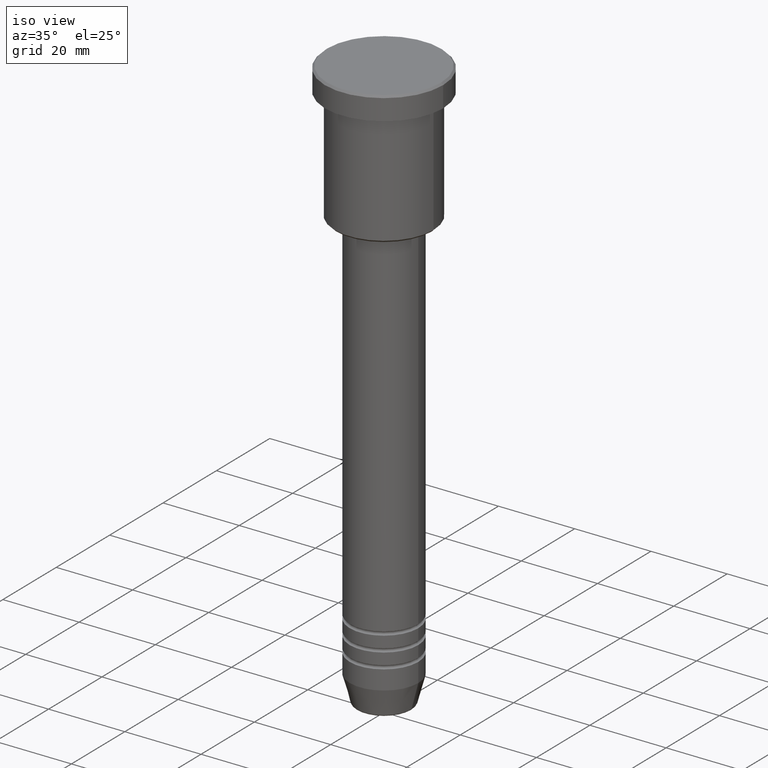
[diagram: clean part render]
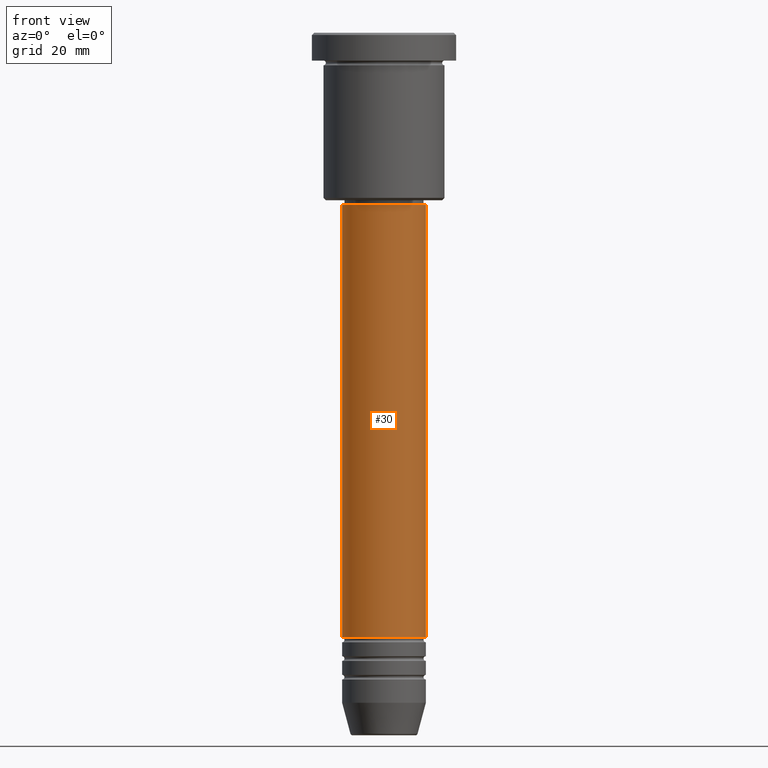
[diagram: tour spotlight — one face highlighted and labeled with its STEP entity id]
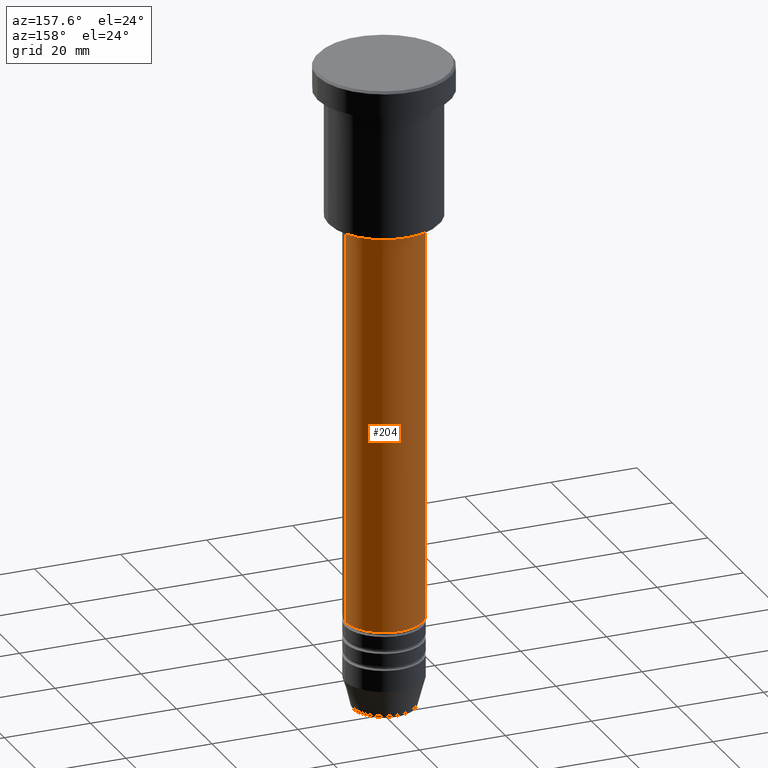
[diagram: tour spotlight — one face highlighted and labeled with its STEP entity id]
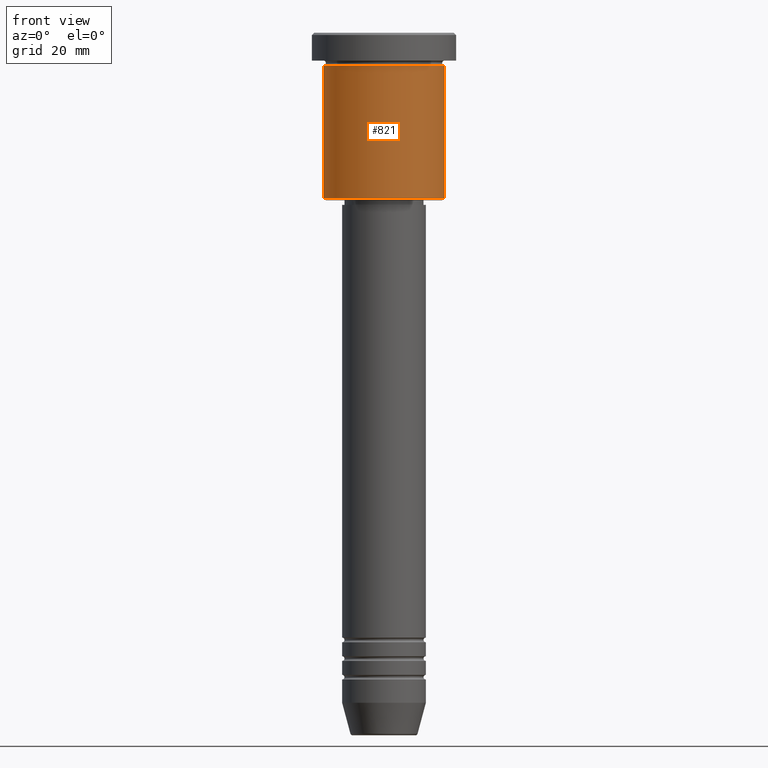
[diagram: tour spotlight — one face highlighted and labeled with its STEP entity id]
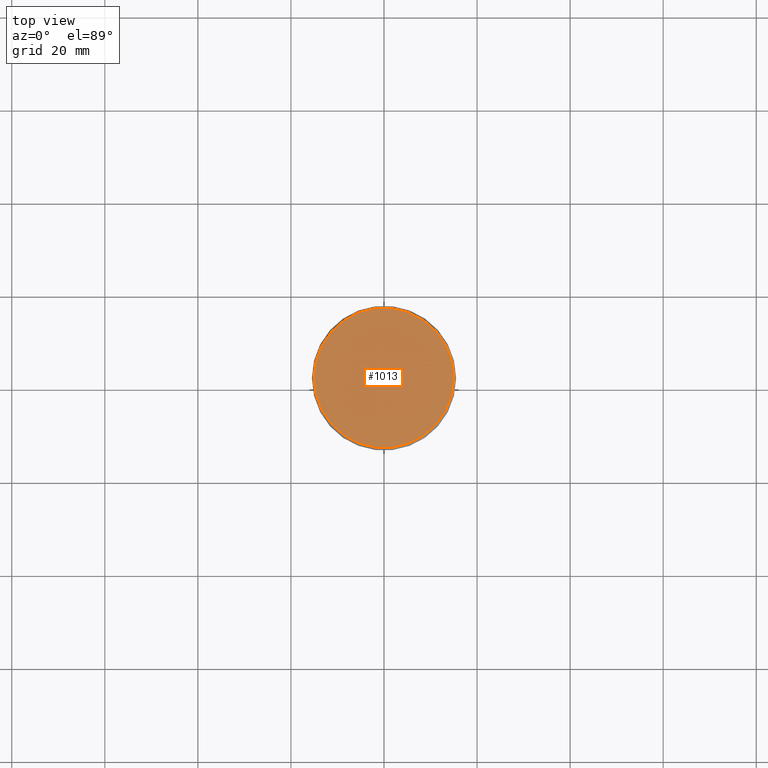
[diagram: tour spotlight — one face highlighted and labeled with its STEP entity id]
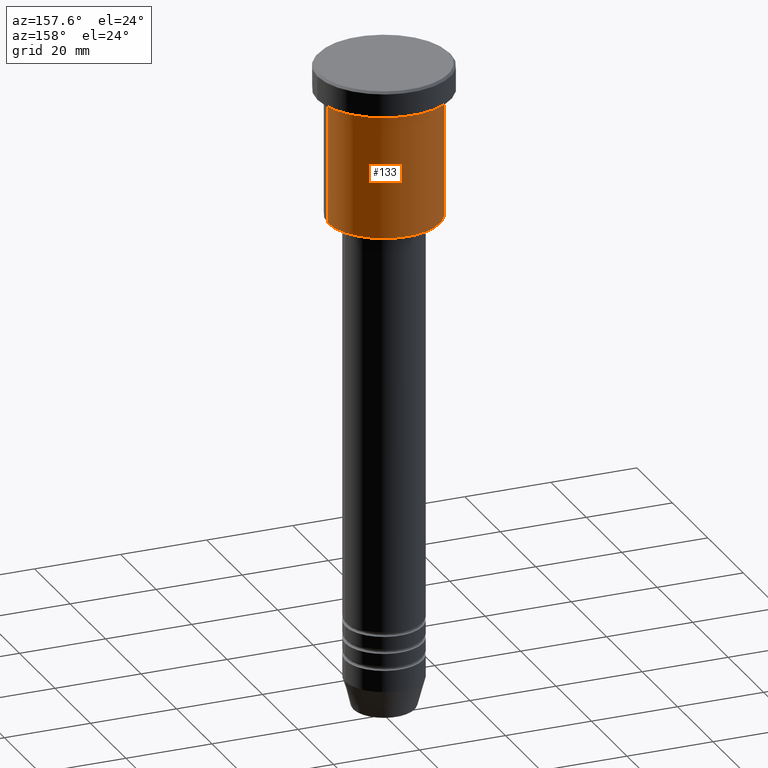
[diagram: tour spotlight — one face highlighted and labeled with its STEP entity id]
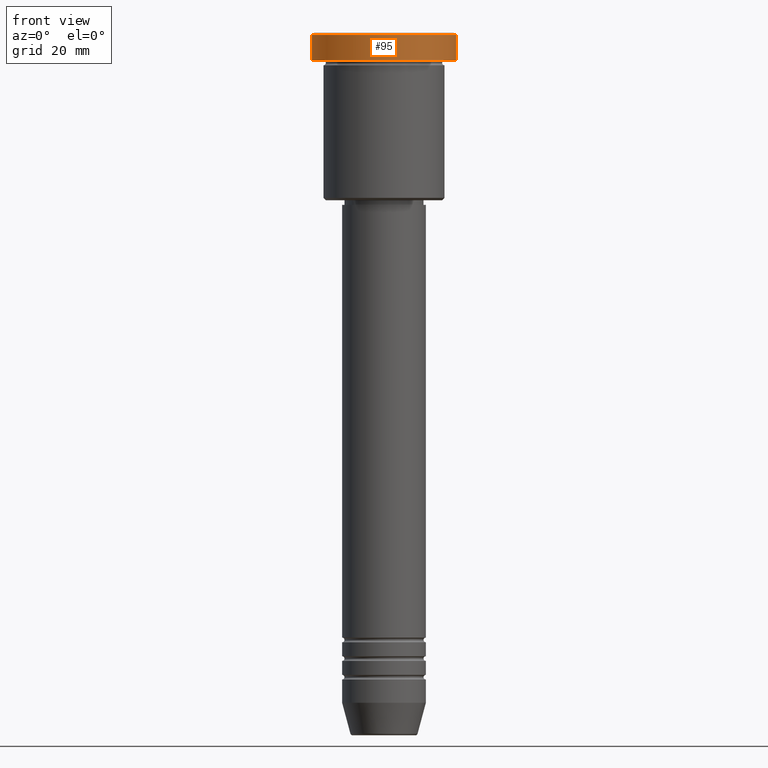
[diagram: tour spotlight — one face highlighted and labeled with its STEP entity id]
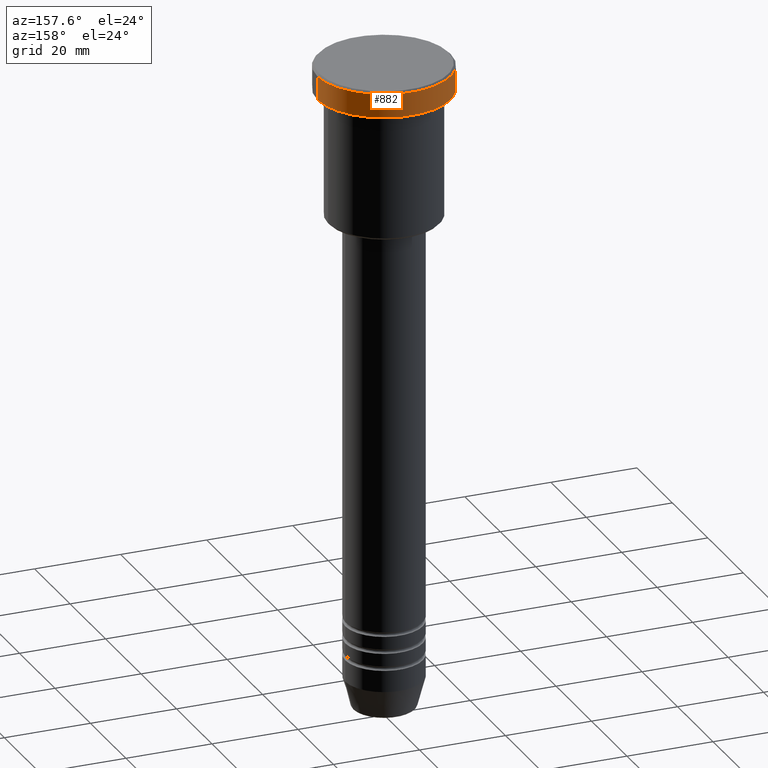
[diagram: tour spotlight — one face highlighted and labeled with its STEP entity id]
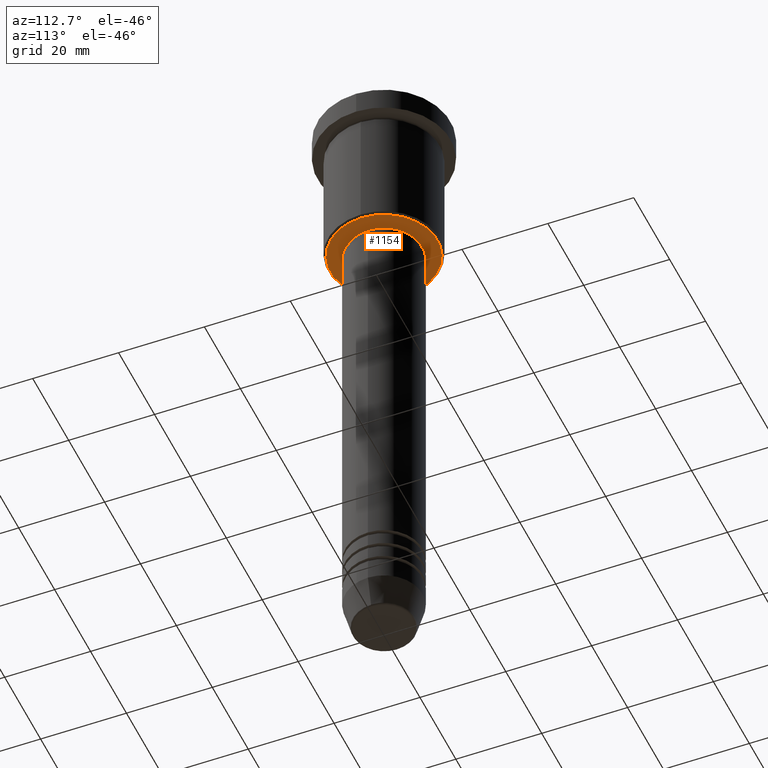
[diagram: tour spotlight — one face highlighted and labeled with its STEP entity id]
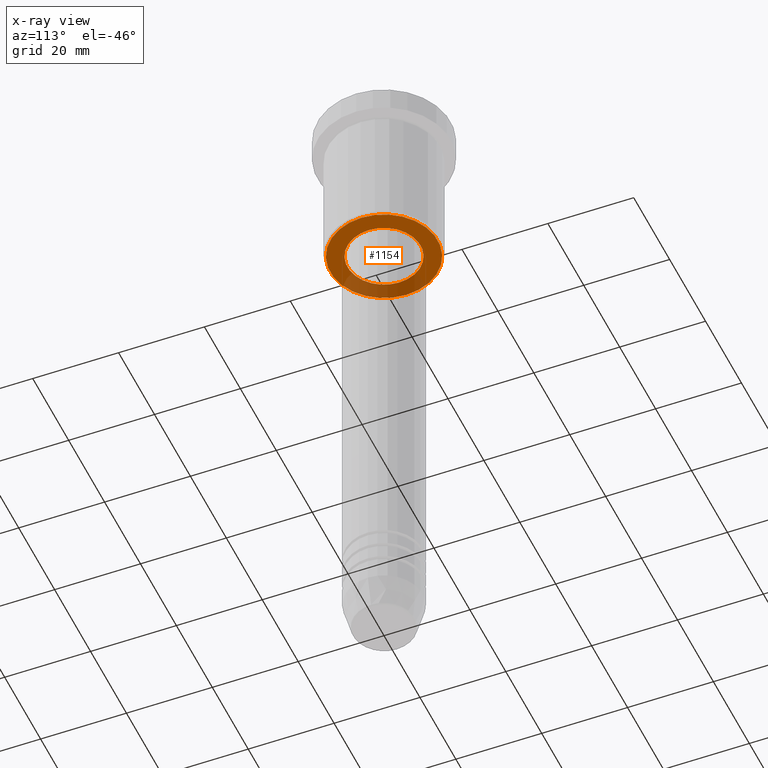
[diagram: x-ray of the same camera — body ghosted, this tour face saturated]
A machine part: a face-by-face anatomy tour. The part has 43 B-rep faces; the first image is the clean iso view, then the 8 largest visible faces are spotlighted one at a time (largest first), each with its STEP entity span.

Face 1 — front view, entity #30. In plain terms, the highlighted cylindrical surface (partial cylindrical patch) has radius 9 mm, axis along (-0, -0, 1).
Definition (entity closure, byte-faithful):
#1 = AXIS2_PLACEMENT_3D ( 'NONE', #104, #1054, #1133 ) ;
#17 = ORIENTED_EDGE ( 'NONE', *, *, #617, .F. ) ;
#25 = EDGE_CURVE ( 'NONE', #606, #379, #1037, .T. ) ;
#30 = ADVANCED_FACE ( 'NONE', ( #1065 ), #402, .T. ) ;
#31 = DIRECTION ( 'NONE',  ( -0.000000000000000000, -0.000000000000000000, 1.000000000000000000 ) ) ;
#37 = EDGE_CURVE ( 'NONE', #379, #1028, #695, .T. ) ;
#104 = CARTESIAN_POINT ( 'NONE',  ( 0.000000000000000000, 0.000000000000000000, -129.9999999999998863 ) ) ;
#129 = VERTEX_POINT ( 'NONE', #744 ) ;
#131 = CARTESIAN_POINT ( 'NONE',  ( 9.000000000000000000, 0.000000000000000000, 0.000000000000000000 ) ) ;
#176 = VECTOR ( 'NONE', #513, 1000.000000000000000 ) ;
#251 = AXIS2_PLACEMENT_3D ( 'NONE', #957, #593, #797 ) ;
#287 = ORIENTED_EDGE ( 'NONE', *, *, #25, .T. ) ;
#299 = EDGE_LOOP ( 'NONE', ( #17, #287, #1050, #461 ) ) ;
#379 = VERTEX_POINT ( 'NONE', #997 ) ;
#402 = CYLINDRICAL_SURFACE ( 'NONE', #641, 9.000000000000000000 ) ;
#461 = ORIENTED_EDGE ( 'NONE', *, *, #514, .F. ) ;
#513 = DIRECTION ( 'NONE',  ( -0.000000000000000000, -0.000000000000000000, 1.000000000000000000 ) ) ;
#514 = EDGE_CURVE ( 'NONE', #129, #1028, #770, .T. ) ;
#584 = CARTESIAN_POINT ( 'NONE',  ( -9.000000000000000000, 1.102182119232617714E-15, 0.000000000000000000 ) ) ;
#593 = DIRECTION ( 'NONE',  ( -0.000000000000000000, -0.000000000000000000, 1.000000000000000000 ) ) ;
#606 = VERTEX_POINT ( 'NONE', #1032 ) ;
#617 = EDGE_CURVE ( 'NONE', #606, #129, #1139, .T. ) ;
#641 = AXIS2_PLACEMENT_3D ( 'NONE', #1138, #766, #956 ) ;
#695 = LINE ( 'NONE', #131, #176 ) ;
#744 = CARTESIAN_POINT ( 'NONE',  ( -8.999999999999998224, 1.102182119232617714E-15, -37.00000000000000000 ) ) ;
#766 = DIRECTION ( 'NONE',  ( -0.000000000000000000, -0.000000000000000000, 1.000000000000000000 ) ) ;
#770 = CIRCLE ( 'NONE', #251, 8.999999999999998224 ) ;
#797 = DIRECTION ( 'NONE',  ( 1.000000000000000000, 0.000000000000000000, 0.000000000000000000 ) ) ;
#956 = DIRECTION ( 'NONE',  ( 1.000000000000000000, 0.000000000000000000, 0.000000000000000000 ) ) ;
#957 = CARTESIAN_POINT ( 'NONE',  ( 0.000000000000000000, 0.000000000000000000, -37.00000000000000000 ) ) ;
#997 = CARTESIAN_POINT ( 'NONE',  ( 9.000000000000001776, 0.000000000000000000, -129.9999999999998863 ) ) ;
#1028 = VERTEX_POINT ( 'NONE', #1053 ) ;
#1032 = CARTESIAN_POINT ( 'NONE',  ( -9.000000000000001776, 1.102182119232617911E-15, -129.9999999999998863 ) ) ;
#1037 = CIRCLE ( 'NONE', #1, 9.000000000000001776 ) ;
#1050 = ORIENTED_EDGE ( 'NONE', *, *, #37, .T. ) ;
#1053 = CARTESIAN_POINT ( 'NONE',  ( 8.999999999999998224, 0.000000000000000000, -37.00000000000000000 ) ) ;
#1054 = DIRECTION ( 'NONE',  ( -0.000000000000000000, -0.000000000000000000, 1.000000000000000000 ) ) ;
#1065 = FACE_OUTER_BOUND ( 'NONE', #299, .T. ) ;
#1133 = DIRECTION ( 'NONE',  ( 1.000000000000000000, 0.000000000000000000, 0.000000000000000000 ) ) ;
#1138 = CARTESIAN_POINT ( 'NONE',  ( 0.000000000000000000, 0.000000000000000000, 0.000000000000000000 ) ) ;
#1139 = LINE ( 'NONE', #584, #1168 ) ;
#1168 = VECTOR ( 'NONE', #31, 1000.000000000000000 ) ;

Face 2 — auxiliary view, entity #204. In plain terms, the highlighted cylindrical surface (partial cylindrical patch) has radius 9 mm, axis along (-0, -0, 1).
Definition (entity closure, byte-faithful):
#23 = AXIS2_PLACEMENT_3D ( 'NONE', #1049, #1127, #307 ) ;
#31 = DIRECTION ( 'NONE',  ( -0.000000000000000000, -0.000000000000000000, 1.000000000000000000 ) ) ;
#37 = EDGE_CURVE ( 'NONE', #379, #1028, #695, .T. ) ;
#83 = CIRCLE ( 'NONE', #715, 9.000000000000001776 ) ;
#129 = VERTEX_POINT ( 'NONE', #744 ) ;
#131 = CARTESIAN_POINT ( 'NONE',  ( 9.000000000000000000, 0.000000000000000000, 0.000000000000000000 ) ) ;
#163 = ORIENTED_EDGE ( 'NONE', *, *, #37, .F. ) ;
#171 = EDGE_LOOP ( 'NONE', ( #991, #867, #912, #163 ) ) ;
#176 = VECTOR ( 'NONE', #513, 1000.000000000000000 ) ;
#204 = ADVANCED_FACE ( 'NONE', ( #621 ), #793, .T. ) ;
#256 = DIRECTION ( 'NONE',  ( -0.000000000000000000, -0.000000000000000000, 1.000000000000000000 ) ) ;
#307 = DIRECTION ( 'NONE',  ( 1.000000000000000000, 0.000000000000000000, 0.000000000000000000 ) ) ;
#348 = AXIS2_PLACEMENT_3D ( 'NONE', #902, #632, #708 ) ;
#379 = VERTEX_POINT ( 'NONE', #997 ) ;
#513 = DIRECTION ( 'NONE',  ( -0.000000000000000000, -0.000000000000000000, 1.000000000000000000 ) ) ;
#550 = DIRECTION ( 'NONE',  ( 1.000000000000000000, 0.000000000000000000, 0.000000000000000000 ) ) ;
#584 = CARTESIAN_POINT ( 'NONE',  ( -9.000000000000000000, 1.102182119232617714E-15, 0.000000000000000000 ) ) ;
#606 = VERTEX_POINT ( 'NONE', #1032 ) ;
#617 = EDGE_CURVE ( 'NONE', #606, #129, #1139, .T. ) ;
#621 = FACE_OUTER_BOUND ( 'NONE', #171, .T. ) ;
#629 = EDGE_CURVE ( 'NONE', #1028, #129, #1020, .T. ) ;
#632 = DIRECTION ( 'NONE',  ( -0.000000000000000000, -0.000000000000000000, 1.000000000000000000 ) ) ;
#695 = LINE ( 'NONE', #131, #176 ) ;
#708 = DIRECTION ( 'NONE',  ( 1.000000000000000000, 0.000000000000000000, 0.000000000000000000 ) ) ;
#715 = AXIS2_PLACEMENT_3D ( 'NONE', #720, #256, #550 ) ;
#720 = CARTESIAN_POINT ( 'NONE',  ( 0.000000000000000000, 0.000000000000000000, -129.9999999999998863 ) ) ;
#744 = CARTESIAN_POINT ( 'NONE',  ( -8.999999999999998224, 1.102182119232617714E-15, -37.00000000000000000 ) ) ;
#793 = CYLINDRICAL_SURFACE ( 'NONE', #348, 9.000000000000000000 ) ;
#867 = ORIENTED_EDGE ( 'NONE', *, *, #617, .T. ) ;
#902 = CARTESIAN_POINT ( 'NONE',  ( 0.000000000000000000, 0.000000000000000000, 0.000000000000000000 ) ) ;
#912 = ORIENTED_EDGE ( 'NONE', *, *, #629, .F. ) ;
#991 = ORIENTED_EDGE ( 'NONE', *, *, #1106, .T. ) ;
#997 = CARTESIAN_POINT ( 'NONE',  ( 9.000000000000001776, 0.000000000000000000, -129.9999999999998863 ) ) ;
#1020 = CIRCLE ( 'NONE', #23, 8.999999999999998224 ) ;
#1028 = VERTEX_POINT ( 'NONE', #1053 ) ;
#1032 = CARTESIAN_POINT ( 'NONE',  ( -9.000000000000001776, 1.102182119232617911E-15, -129.9999999999998863 ) ) ;
#1049 = CARTESIAN_POINT ( 'NONE',  ( 0.000000000000000000, 0.000000000000000000, -37.00000000000000000 ) ) ;
#1053 = CARTESIAN_POINT ( 'NONE',  ( 8.999999999999998224, 0.000000000000000000, -37.00000000000000000 ) ) ;
#1106 = EDGE_CURVE ( 'NONE', #379, #606, #83, .T. ) ;
#1127 = DIRECTION ( 'NONE',  ( -0.000000000000000000, -0.000000000000000000, 1.000000000000000000 ) ) ;
#1139 = LINE ( 'NONE', #584, #1168 ) ;
#1168 = VECTOR ( 'NONE', #31, 1000.000000000000000 ) ;

Face 3 — front view, entity #821. In plain terms, the highlighted cylindrical surface (partial cylindrical patch) has radius 13 mm, axis along (-0, -0, 1).
Definition (entity closure, byte-faithful):
#71 = DIRECTION ( 'NONE',  ( -0.000000000000000000, -0.000000000000000000, 1.000000000000000000 ) ) ;
#202 = CARTESIAN_POINT ( 'NONE',  ( 0.000000000000000000, 0.000000000000000000, 0.000000000000000000 ) ) ;
#206 = ORIENTED_EDGE ( 'NONE', *, *, #459, .F. ) ;
#239 = DIRECTION ( 'NONE',  ( 1.000000000000000000, 0.000000000000000000, 0.000000000000000000 ) ) ;
#246 = CARTESIAN_POINT ( 'NONE',  ( 13.00000000000000178, 0.000000000000000000, 0.000000000000000000 ) ) ;
#266 = CARTESIAN_POINT ( 'NONE',  ( -13.00000000000000178, 1.592040838891559293E-15, -35.50000000000001421 ) ) ;
#272 = DIRECTION ( 'NONE',  ( -0.000000000000000000, -0.000000000000000000, 1.000000000000000000 ) ) ;
#275 = CIRCLE ( 'NONE', #1170, 13.00000000000000178 ) ;
#290 = CARTESIAN_POINT ( 'NONE',  ( 0.000000000000000000, 0.000000000000000000, -35.50000000000001421 ) ) ;
#291 = VECTOR ( 'NONE', #71, 1000.000000000000000 ) ;
#327 = EDGE_LOOP ( 'NONE', ( #206, #692, #600, #953 ) ) ;
#333 = EDGE_CURVE ( 'NONE', #417, #877, #339, .T. ) ;
#339 = LINE ( 'NONE', #246, #291 ) ;
#361 = EDGE_CURVE ( 'NONE', #1144, #417, #696, .T. ) ;
#391 = DIRECTION ( 'NONE',  ( 1.000000000000000000, 0.000000000000000000, 0.000000000000000000 ) ) ;
#417 = VERTEX_POINT ( 'NONE', #1110 ) ;
#459 = EDGE_CURVE ( 'NONE', #1144, #1030, #549, .T. ) ;
#477 = DIRECTION ( 'NONE',  ( -0.000000000000000000, -0.000000000000000000, 1.000000000000000000 ) ) ;
#544 = VECTOR ( 'NONE', #272, 1000.000000000000000 ) ;
#549 = LINE ( 'NONE', #909, #544 ) ;
#562 = AXIS2_PLACEMENT_3D ( 'NONE', #290, #477, #664 ) ;
#591 = CYLINDRICAL_SURFACE ( 'NONE', #886, 13.00000000000000178 ) ;
#600 = ORIENTED_EDGE ( 'NONE', *, *, #333, .T. ) ;
#601 = CARTESIAN_POINT ( 'NONE',  ( -13.00000000000000178, 1.592040838891559293E-15, -6.999999999999995559 ) ) ;
#664 = DIRECTION ( 'NONE',  ( -1.000000000000000000, 0.000000000000000000, 0.000000000000000000 ) ) ;
#692 = ORIENTED_EDGE ( 'NONE', *, *, #361, .T. ) ;
#696 = CIRCLE ( 'NONE', #562, 13.00000000000000178 ) ;
#757 = DIRECTION ( 'NONE',  ( -0.000000000000000000, -0.000000000000000000, 1.000000000000000000 ) ) ;
#784 = CARTESIAN_POINT ( 'NONE',  ( 0.000000000000000000, 0.000000000000000000, -6.999999999999995559 ) ) ;
#821 = ADVANCED_FACE ( 'NONE', ( #1120 ), #591, .T. ) ;
#877 = VERTEX_POINT ( 'NONE', #1014 ) ;
#886 = AXIS2_PLACEMENT_3D ( 'NONE', #202, #757, #391 ) ;
#909 = CARTESIAN_POINT ( 'NONE',  ( -13.00000000000000178, 1.592040838891559293E-15, 0.000000000000000000 ) ) ;
#953 = ORIENTED_EDGE ( 'NONE', *, *, #1035, .F. ) ;
#1014 = CARTESIAN_POINT ( 'NONE',  ( 13.00000000000000178, 0.000000000000000000, -6.999999999999995559 ) ) ;
#1030 = VERTEX_POINT ( 'NONE', #601 ) ;
#1035 = EDGE_CURVE ( 'NONE', #1030, #877, #275, .T. ) ;
#1068 = DIRECTION ( 'NONE',  ( -0.000000000000000000, -0.000000000000000000, 1.000000000000000000 ) ) ;
#1110 = CARTESIAN_POINT ( 'NONE',  ( 13.00000000000000178, 0.000000000000000000, -35.50000000000001421 ) ) ;
#1120 = FACE_OUTER_BOUND ( 'NONE', #327, .T. ) ;
#1144 = VERTEX_POINT ( 'NONE', #266 ) ;
#1170 = AXIS2_PLACEMENT_3D ( 'NONE', #784, #1068, #239 ) ;

Face 4 — top view, entity #1013. In plain terms, the highlighted planar face has unit normal (0, -0, 1).
Definition (entity closure, byte-faithful):
#130 = DIRECTION ( 'NONE',  ( 0.000000000000000000, -0.000000000000000000, 1.000000000000000000 ) ) ;
#141 = AXIS2_PLACEMENT_3D ( 'NONE', #229, #518, #329 ) ;
#148 = DIRECTION ( 'NONE',  ( -0.000000000000000000, -0.000000000000000000, 1.000000000000000000 ) ) ;
#162 = CARTESIAN_POINT ( 'NONE',  ( 14.99999999999997158, 1.867586368699711798E-15, 0.000000000000000000 ) ) ;
#229 = CARTESIAN_POINT ( 'NONE',  ( 0.000000000000000000, 0.000000000000000000, 0.000000000000000000 ) ) ;
#245 = ORIENTED_EDGE ( 'NONE', *, *, #948, .T. ) ;
#322 = DIRECTION ( 'NONE',  ( 1.000000000000000000, 0.000000000000000000, 0.000000000000000000 ) ) ;
#326 = DIRECTION ( 'NONE',  ( 1.000000000000000000, 0.000000000000000000, 0.000000000000000000 ) ) ;
#329 = DIRECTION ( 'NONE',  ( 1.000000000000000000, 0.000000000000000000, 0.000000000000000000 ) ) ;
#332 = AXIS2_PLACEMENT_3D ( 'NONE', #694, #148, #322 ) ;
#389 = AXIS2_PLACEMENT_3D ( 'NONE', #1146, #130, #326 ) ;
#489 = CIRCLE ( 'NONE', #332, 14.99999999999997158 ) ;
#512 = PLANE ( 'NONE',  #389 ) ;
#518 = DIRECTION ( 'NONE',  ( -0.000000000000000000, -0.000000000000000000, 1.000000000000000000 ) ) ;
#525 = CARTESIAN_POINT ( 'NONE',  ( -14.99999999999997158, 0.000000000000000000, 0.000000000000000000 ) ) ;
#542 = EDGE_LOOP ( 'NONE', ( #954, #245 ) ) ;
#640 = VERTEX_POINT ( 'NONE', #525 ) ;
#694 = CARTESIAN_POINT ( 'NONE',  ( 0.000000000000000000, 0.000000000000000000, 0.000000000000000000 ) ) ;
#760 = VERTEX_POINT ( 'NONE', #162 ) ;
#765 = FACE_OUTER_BOUND ( 'NONE', #542, .T. ) ;
#907 = CIRCLE ( 'NONE', #141, 14.99999999999997158 ) ;
#948 = EDGE_CURVE ( 'NONE', #760, #640, #489, .T. ) ;
#949 = EDGE_CURVE ( 'NONE', #640, #760, #907, .T. ) ;
#954 = ORIENTED_EDGE ( 'NONE', *, *, #949, .T. ) ;
#1013 = ADVANCED_FACE ( 'NONE', ( #765 ), #512, .T. ) ;
#1146 = CARTESIAN_POINT ( 'NONE',  ( 0.000000000000000000, 0.000000000000000000, 0.000000000000000000 ) ) ;

Face 5 — auxiliary view, entity #133. In plain terms, the highlighted cylindrical surface (partial cylindrical patch) has radius 13 mm, axis along (-0, -0, 1).
Definition (entity closure, byte-faithful):
#14 = DIRECTION ( 'NONE',  ( -1.000000000000000000, 0.000000000000000000, 0.000000000000000000 ) ) ;
#40 = AXIS2_PLACEMENT_3D ( 'NONE', #383, #555, #741 ) ;
#71 = DIRECTION ( 'NONE',  ( -0.000000000000000000, -0.000000000000000000, 1.000000000000000000 ) ) ;
#133 = ADVANCED_FACE ( 'NONE', ( #1117 ), #305, .T. ) ;
#142 = ORIENTED_EDGE ( 'NONE', *, *, #333, .F. ) ;
#215 = CARTESIAN_POINT ( 'NONE',  ( 0.000000000000000000, 0.000000000000000000, -35.50000000000001421 ) ) ;
#238 = ORIENTED_EDGE ( 'NONE', *, *, #894, .T. ) ;
#246 = CARTESIAN_POINT ( 'NONE',  ( 13.00000000000000178, 0.000000000000000000, 0.000000000000000000 ) ) ;
#252 = AXIS2_PLACEMENT_3D ( 'NONE', #215, #474, #14 ) ;
#266 = CARTESIAN_POINT ( 'NONE',  ( -13.00000000000000178, 1.592040838891559293E-15, -35.50000000000001421 ) ) ;
#272 = DIRECTION ( 'NONE',  ( -0.000000000000000000, -0.000000000000000000, 1.000000000000000000 ) ) ;
#291 = VECTOR ( 'NONE', #71, 1000.000000000000000 ) ;
#305 = CYLINDRICAL_SURFACE ( 'NONE', #40, 13.00000000000000178 ) ;
#333 = EDGE_CURVE ( 'NONE', #417, #877, #339, .T. ) ;
#339 = LINE ( 'NONE', #246, #291 ) ;
#383 = CARTESIAN_POINT ( 'NONE',  ( 0.000000000000000000, 0.000000000000000000, 0.000000000000000000 ) ) ;
#410 = AXIS2_PLACEMENT_3D ( 'NONE', #504, #689, #1064 ) ;
#417 = VERTEX_POINT ( 'NONE', #1110 ) ;
#459 = EDGE_CURVE ( 'NONE', #1144, #1030, #549, .T. ) ;
#473 = ORIENTED_EDGE ( 'NONE', *, *, #1023, .F. ) ;
#474 = DIRECTION ( 'NONE',  ( -0.000000000000000000, -0.000000000000000000, 1.000000000000000000 ) ) ;
#504 = CARTESIAN_POINT ( 'NONE',  ( 0.000000000000000000, 0.000000000000000000, -6.999999999999995559 ) ) ;
#544 = VECTOR ( 'NONE', #272, 1000.000000000000000 ) ;
#549 = LINE ( 'NONE', #909, #544 ) ;
#555 = DIRECTION ( 'NONE',  ( -0.000000000000000000, -0.000000000000000000, 1.000000000000000000 ) ) ;
#601 = CARTESIAN_POINT ( 'NONE',  ( -13.00000000000000178, 1.592040838891559293E-15, -6.999999999999995559 ) ) ;
#683 = CIRCLE ( 'NONE', #252, 13.00000000000000178 ) ;
#689 = DIRECTION ( 'NONE',  ( -0.000000000000000000, -0.000000000000000000, 1.000000000000000000 ) ) ;
#735 = EDGE_LOOP ( 'NONE', ( #238, #1159, #473, #142 ) ) ;
#741 = DIRECTION ( 'NONE',  ( 1.000000000000000000, 0.000000000000000000, 0.000000000000000000 ) ) ;
#811 = CIRCLE ( 'NONE', #410, 13.00000000000000178 ) ;
#877 = VERTEX_POINT ( 'NONE', #1014 ) ;
#894 = EDGE_CURVE ( 'NONE', #417, #1144, #683, .T. ) ;
#909 = CARTESIAN_POINT ( 'NONE',  ( -13.00000000000000178, 1.592040838891559293E-15, 0.000000000000000000 ) ) ;
#1014 = CARTESIAN_POINT ( 'NONE',  ( 13.00000000000000178, 0.000000000000000000, -6.999999999999995559 ) ) ;
#1023 = EDGE_CURVE ( 'NONE', #877, #1030, #811, .T. ) ;
#1030 = VERTEX_POINT ( 'NONE', #601 ) ;
#1064 = DIRECTION ( 'NONE',  ( 1.000000000000000000, 0.000000000000000000, 0.000000000000000000 ) ) ;
#1110 = CARTESIAN_POINT ( 'NONE',  ( 13.00000000000000178, 0.000000000000000000, -35.50000000000001421 ) ) ;
#1117 = FACE_OUTER_BOUND ( 'NONE', #735, .T. ) ;
#1144 = VERTEX_POINT ( 'NONE', #266 ) ;
#1159 = ORIENTED_EDGE ( 'NONE', *, *, #459, .T. ) ;

Face 6 — front view, entity #95. In plain terms, the highlighted cylindrical surface (partial cylindrical patch) has radius 15.5 mm, axis along (-0, -0, 1).
Definition (entity closure, byte-faithful):
#26 = VECTOR ( 'NONE', #106, 1000.000000000000000 ) ;
#29 = CARTESIAN_POINT ( 'NONE',  ( 15.50000000000000000, 0.000000000000000000, 0.000000000000000000 ) ) ;
#39 = CYLINDRICAL_SURFACE ( 'NONE', #824, 15.50000000000000000 ) ;
#95 = ADVANCED_FACE ( 'NONE', ( #958 ), #39, .T. ) ;
#106 = DIRECTION ( 'NONE',  ( -0.000000000000000000, -0.000000000000000000, 1.000000000000000000 ) ) ;
#117 = CIRCLE ( 'NONE', #714, 15.50000000000000000 ) ;
#174 = CARTESIAN_POINT ( 'NONE',  ( 15.50000000000000000, 0.000000000000000000, -0.5000000000000264233 ) ) ;
#221 = DIRECTION ( 'NONE',  ( 1.000000000000000000, 0.000000000000000000, 0.000000000000000000 ) ) ;
#318 = AXIS2_PLACEMENT_3D ( 'NONE', #1132, #613, #221 ) ;
#320 = DIRECTION ( 'NONE',  ( -0.000000000000000000, -0.000000000000000000, 1.000000000000000000 ) ) ;
#328 = VERTEX_POINT ( 'NONE', #1157 ) ;
#356 = CARTESIAN_POINT ( 'NONE',  ( 0.000000000000000000, 0.000000000000000000, -0.5000000000000264233 ) ) ;
#521 = CARTESIAN_POINT ( 'NONE',  ( -15.50000000000000000, 1.898202538678397557E-15, -5.999999999999995559 ) ) ;
#566 = ORIENTED_EDGE ( 'NONE', *, *, #933, .T. ) ;
#577 = LINE ( 'NONE', #1021, #26 ) ;
#594 = CARTESIAN_POINT ( 'NONE',  ( 0.000000000000000000, 0.000000000000000000, 0.000000000000000000 ) ) ;
#613 = DIRECTION ( 'NONE',  ( -0.000000000000000000, -0.000000000000000000, 1.000000000000000000 ) ) ;
#656 = DIRECTION ( 'NONE',  ( -0.000000000000000000, -0.000000000000000000, 1.000000000000000000 ) ) ;
#687 = DIRECTION ( 'NONE',  ( 1.000000000000000000, 0.000000000000000000, 0.000000000000000000 ) ) ;
#711 = VERTEX_POINT ( 'NONE', #1010 ) ;
#714 = AXIS2_PLACEMENT_3D ( 'NONE', #356, #722, #1086 ) ;
#722 = DIRECTION ( 'NONE',  ( 0.000000000000000000, 0.000000000000000000, -1.000000000000000000 ) ) ;
#730 = VERTEX_POINT ( 'NONE', #174 ) ;
#734 = CIRCLE ( 'NONE', #318, 15.50000000000000000 ) ;
#749 = ORIENTED_EDGE ( 'NONE', *, *, #785, .T. ) ;
#778 = ORIENTED_EDGE ( 'NONE', *, *, #798, .T. ) ;
#785 = EDGE_CURVE ( 'NONE', #730, #711, #117, .T. ) ;
#798 = EDGE_CURVE ( 'NONE', #328, #730, #996, .T. ) ;
#824 = AXIS2_PLACEMENT_3D ( 'NONE', #594, #320, #687 ) ;
#896 = EDGE_CURVE ( 'NONE', #1141, #711, #577, .T. ) ;
#931 = ORIENTED_EDGE ( 'NONE', *, *, #896, .F. ) ;
#933 = EDGE_CURVE ( 'NONE', #1141, #328, #734, .T. ) ;
#958 = FACE_OUTER_BOUND ( 'NONE', #1077, .T. ) ;
#996 = LINE ( 'NONE', #29, #1134 ) ;
#1010 = CARTESIAN_POINT ( 'NONE',  ( -15.50000000000000000, 1.898202538678397557E-15, -0.5000000000000264233 ) ) ;
#1021 = CARTESIAN_POINT ( 'NONE',  ( -15.50000000000000000, 1.898202538678397557E-15, 0.000000000000000000 ) ) ;
#1077 = EDGE_LOOP ( 'NONE', ( #931, #566, #778, #749 ) ) ;
#1086 = DIRECTION ( 'NONE',  ( 1.000000000000000000, 0.000000000000000000, 0.000000000000000000 ) ) ;
#1132 = CARTESIAN_POINT ( 'NONE',  ( 0.000000000000000000, 0.000000000000000000, -5.999999999999995559 ) ) ;
#1134 = VECTOR ( 'NONE', #656, 1000.000000000000000 ) ;
#1141 = VERTEX_POINT ( 'NONE', #521 ) ;
#1157 = CARTESIAN_POINT ( 'NONE',  ( 15.50000000000000000, 0.000000000000000000, -5.999999999999995559 ) ) ;

Face 7 — auxiliary view, entity #882. In plain terms, the highlighted cylindrical surface (partial cylindrical patch) has radius 15.5 mm, axis along (-0, -0, 1).
Definition (entity closure, byte-faithful):
#3 = CIRCLE ( 'NONE', #330, 15.50000000000000000 ) ;
#26 = VECTOR ( 'NONE', #106, 1000.000000000000000 ) ;
#29 = CARTESIAN_POINT ( 'NONE',  ( 15.50000000000000000, 0.000000000000000000, 0.000000000000000000 ) ) ;
#32 = CARTESIAN_POINT ( 'NONE',  ( 0.000000000000000000, 0.000000000000000000, -0.5000000000000264233 ) ) ;
#102 = CARTESIAN_POINT ( 'NONE',  ( 0.000000000000000000, 0.000000000000000000, 0.000000000000000000 ) ) ;
#106 = DIRECTION ( 'NONE',  ( -0.000000000000000000, -0.000000000000000000, 1.000000000000000000 ) ) ;
#108 = EDGE_CURVE ( 'NONE', #711, #730, #844, .T. ) ;
#109 = DIRECTION ( 'NONE',  ( 1.000000000000000000, 0.000000000000000000, 0.000000000000000000 ) ) ;
#174 = CARTESIAN_POINT ( 'NONE',  ( 15.50000000000000000, 0.000000000000000000, -0.5000000000000264233 ) ) ;
#328 = VERTEX_POINT ( 'NONE', #1157 ) ;
#330 = AXIS2_PLACEMENT_3D ( 'NONE', #362, #457, #109 ) ;
#359 = EDGE_CURVE ( 'NONE', #328, #1141, #3, .T. ) ;
#362 = CARTESIAN_POINT ( 'NONE',  ( 0.000000000000000000, 0.000000000000000000, -5.999999999999995559 ) ) ;
#398 = DIRECTION ( 'NONE',  ( 0.000000000000000000, 0.000000000000000000, -1.000000000000000000 ) ) ;
#399 = ORIENTED_EDGE ( 'NONE', *, *, #108, .T. ) ;
#457 = DIRECTION ( 'NONE',  ( -0.000000000000000000, -0.000000000000000000, 1.000000000000000000 ) ) ;
#485 = FACE_OUTER_BOUND ( 'NONE', #1024, .T. ) ;
#521 = CARTESIAN_POINT ( 'NONE',  ( -15.50000000000000000, 1.898202538678397557E-15, -5.999999999999995559 ) ) ;
#547 = AXIS2_PLACEMENT_3D ( 'NONE', #102, #660, #940 ) ;
#577 = LINE ( 'NONE', #1021, #26 ) ;
#656 = DIRECTION ( 'NONE',  ( -0.000000000000000000, -0.000000000000000000, 1.000000000000000000 ) ) ;
#660 = DIRECTION ( 'NONE',  ( -0.000000000000000000, -0.000000000000000000, 1.000000000000000000 ) ) ;
#711 = VERTEX_POINT ( 'NONE', #1010 ) ;
#730 = VERTEX_POINT ( 'NONE', #174 ) ;
#763 = DIRECTION ( 'NONE',  ( 1.000000000000000000, 0.000000000000000000, 0.000000000000000000 ) ) ;
#798 = EDGE_CURVE ( 'NONE', #328, #730, #996, .T. ) ;
#844 = CIRCLE ( 'NONE', #1017, 15.50000000000000000 ) ;
#882 = ADVANCED_FACE ( 'NONE', ( #485 ), #1040, .T. ) ;
#896 = EDGE_CURVE ( 'NONE', #1141, #711, #577, .T. ) ;
#940 = DIRECTION ( 'NONE',  ( 1.000000000000000000, 0.000000000000000000, 0.000000000000000000 ) ) ;
#996 = LINE ( 'NONE', #29, #1134 ) ;
#1010 = CARTESIAN_POINT ( 'NONE',  ( -15.50000000000000000, 1.898202538678397557E-15, -0.5000000000000264233 ) ) ;
#1017 = AXIS2_PLACEMENT_3D ( 'NONE', #32, #398, #763 ) ;
#1021 = CARTESIAN_POINT ( 'NONE',  ( -15.50000000000000000, 1.898202538678397557E-15, 0.000000000000000000 ) ) ;
#1024 = EDGE_LOOP ( 'NONE', ( #1109, #1125, #399, #1108 ) ) ;
#1040 = CYLINDRICAL_SURFACE ( 'NONE', #547, 15.50000000000000000 ) ;
#1108 = ORIENTED_EDGE ( 'NONE', *, *, #798, .F. ) ;
#1109 = ORIENTED_EDGE ( 'NONE', *, *, #359, .T. ) ;
#1125 = ORIENTED_EDGE ( 'NONE', *, *, #896, .T. ) ;
#1134 = VECTOR ( 'NONE', #656, 1000.000000000000000 ) ;
#1141 = VERTEX_POINT ( 'NONE', #521 ) ;
#1157 = CARTESIAN_POINT ( 'NONE',  ( 15.50000000000000000, 0.000000000000000000, -5.999999999999995559 ) ) ;

Face 8 — auxiliary view, entity #1154. An x-ray twin of the same camera follows (body ghosted, this face saturated) — the face is partly hidden behind the body. In plain terms, the highlighted planar face has unit normal (0, 0, -1).
Definition (entity closure, byte-faithful):
#2 = CARTESIAN_POINT ( 'NONE',  ( 0.000000000000000000, 0.000000000000000000, -36.00000000000000711 ) ) ;
#15 = DIRECTION ( 'NONE',  ( 0.000000000000000000, 0.000000000000000000, -1.000000000000000000 ) ) ;
#27 = CARTESIAN_POINT ( 'NONE',  ( -12.50000000000002487, 1.561424668912876886E-15, -36.00000000000000711 ) ) ;
#70 = ORIENTED_EDGE ( 'NONE', *, *, #1171, .T. ) ;
#88 = FACE_OUTER_BOUND ( 'NONE', #993, .T. ) ;
#91 = CARTESIAN_POINT ( 'NONE',  ( 0.000000000000000000, 0.000000000000000000, -36.00000000000000000 ) ) ;
#97 = DIRECTION ( 'NONE',  ( 1.000000000000000000, 0.000000000000000000, 0.000000000000000000 ) ) ;
#144 = EDGE_CURVE ( 'NONE', #536, #670, #998, .T. ) ;
#155 = CIRCLE ( 'NONE', #196, 8.500000000000000000 ) ;
#183 = FACE_BOUND ( 'NONE', #533, .T. ) ;
#193 = VERTEX_POINT ( 'NONE', #253 ) ;
#196 = AXIS2_PLACEMENT_3D ( 'NONE', #91, #463, #97 ) ;
#253 = CARTESIAN_POINT ( 'NONE',  ( -8.500000000000000000, 1.040949779275250140E-15, -36.00000000000000000 ) ) ;
#268 = AXIS2_PLACEMENT_3D ( 'NONE', #351, #636, #456 ) ;
#276 = AXIS2_PLACEMENT_3D ( 'NONE', #347, #639, #1009 ) ;
#293 = ORIENTED_EDGE ( 'NONE', *, *, #144, .T. ) ;
#347 = CARTESIAN_POINT ( 'NONE',  ( 0.000000000000000000, 0.000000000000000000, -36.00000000000000000 ) ) ;
#351 = CARTESIAN_POINT ( 'NONE',  ( 0.000000000000000000, 0.000000000000000000, -36.00000000000000711 ) ) ;
#380 = DIRECTION ( 'NONE',  ( -1.000000000000000000, 0.000000000000000000, 0.000000000000000000 ) ) ;
#414 = EDGE_CURVE ( 'NONE', #670, #536, #679, .T. ) ;
#456 = DIRECTION ( 'NONE',  ( -1.000000000000000000, 0.000000000000000000, 0.000000000000000000 ) ) ;
#463 = DIRECTION ( 'NONE',  ( -0.000000000000000000, -0.000000000000000000, 1.000000000000000000 ) ) ;
#468 = ORIENTED_EDGE ( 'NONE', *, *, #414, .T. ) ;
#478 = EDGE_CURVE ( 'NONE', #193, #486, #155, .T. ) ;
#484 = ORIENTED_EDGE ( 'NONE', *, *, #478, .T. ) ;
#486 = VERTEX_POINT ( 'NONE', #1011 ) ;
#533 = EDGE_LOOP ( 'NONE', ( #70, #484 ) ) ;
#536 = VERTEX_POINT ( 'NONE', #27 ) ;
#548 = CIRCLE ( 'NONE', #276, 8.500000000000000000 ) ;
#636 = DIRECTION ( 'NONE',  ( 0.000000000000000000, 0.000000000000000000, -1.000000000000000000 ) ) ;
#639 = DIRECTION ( 'NONE',  ( -0.000000000000000000, -0.000000000000000000, 1.000000000000000000 ) ) ;
#670 = VERTEX_POINT ( 'NONE', #1099 ) ;
#679 = CIRCLE ( 'NONE', #1019, 12.50000000000002487 ) ;
#796 = PLANE ( 'NONE',  #945 ) ;
#802 = DIRECTION ( 'NONE',  ( -1.000000000000000000, 0.000000000000000000, -0.000000000000000000 ) ) ;
#892 = DIRECTION ( 'NONE',  ( 0.000000000000000000, 0.000000000000000000, -1.000000000000000000 ) ) ;
#945 = AXIS2_PLACEMENT_3D ( 'NONE', #1082, #892, #802 ) ;
#993 = EDGE_LOOP ( 'NONE', ( #468, #293 ) ) ;
#998 = CIRCLE ( 'NONE', #268, 12.50000000000002487 ) ;
#1009 = DIRECTION ( 'NONE',  ( 1.000000000000000000, 0.000000000000000000, 0.000000000000000000 ) ) ;
#1011 = CARTESIAN_POINT ( 'NONE',  ( 8.500000000000000000, 0.000000000000000000, -36.00000000000000000 ) ) ;
#1019 = AXIS2_PLACEMENT_3D ( 'NONE', #2, #15, #380 ) ;
#1082 = CARTESIAN_POINT ( 'NONE',  ( 0.000000000000000000, 13.00000000000000000, -36.00000000000000711 ) ) ;
#1099 = CARTESIAN_POINT ( 'NONE',  ( 12.50000000000002487, 0.000000000000000000, -36.00000000000000711 ) ) ;
#1154 = ADVANCED_FACE ( 'NONE', ( #88, #183 ), #796, .T. ) ;
#1171 = EDGE_CURVE ( 'NONE', #486, #193, #548, .T. ) ;